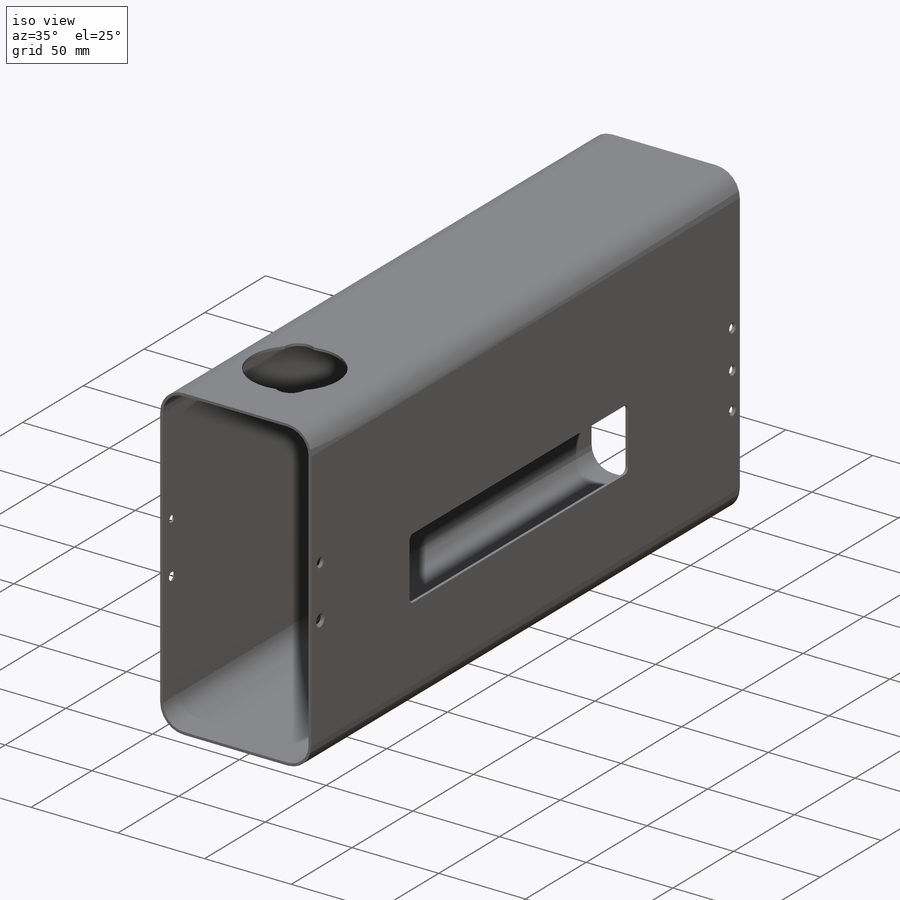
[diagram: iso view]
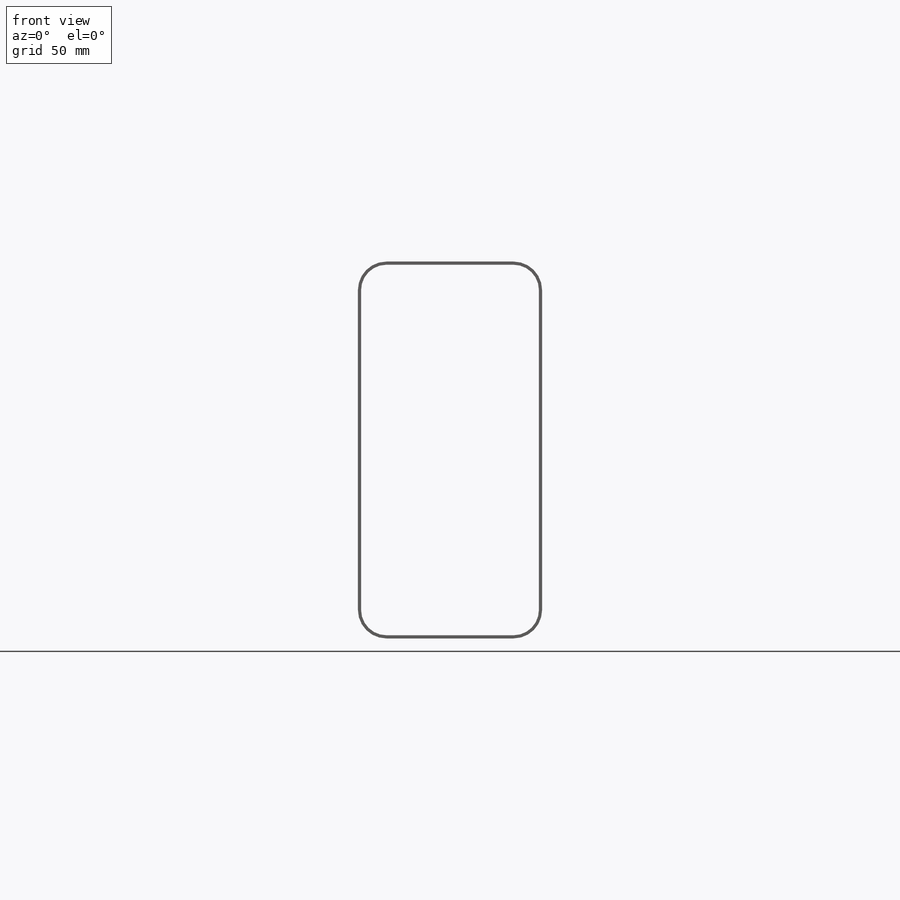
[diagram: front view]
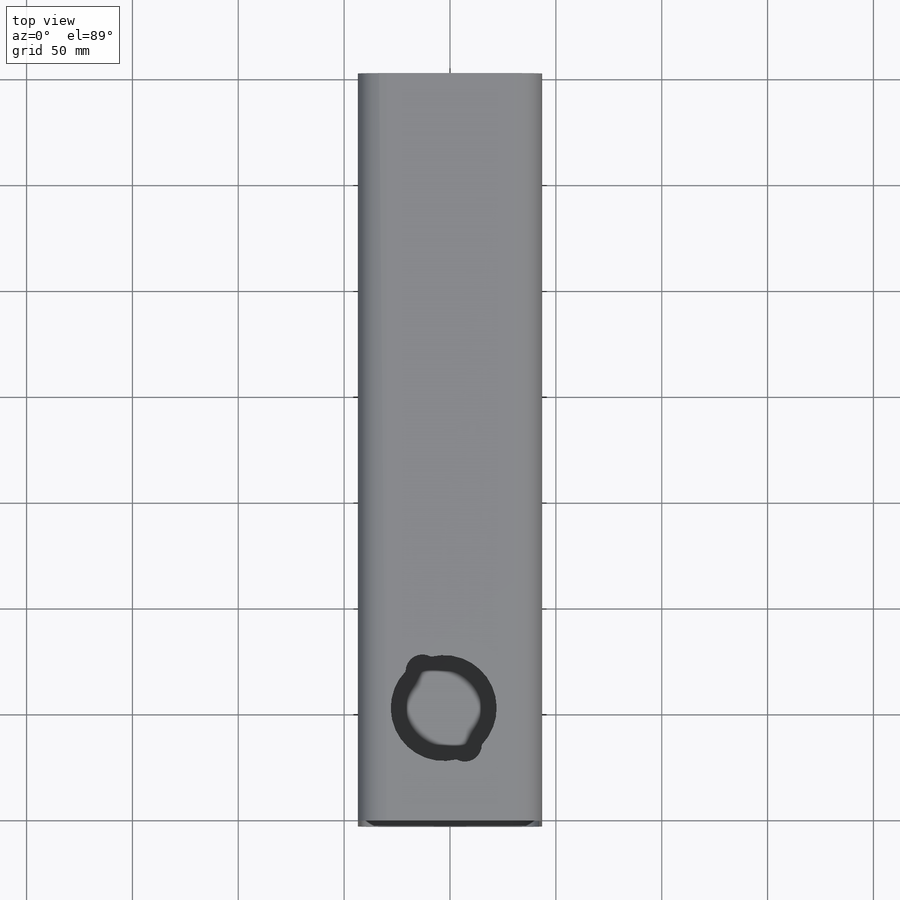
[diagram: top view]
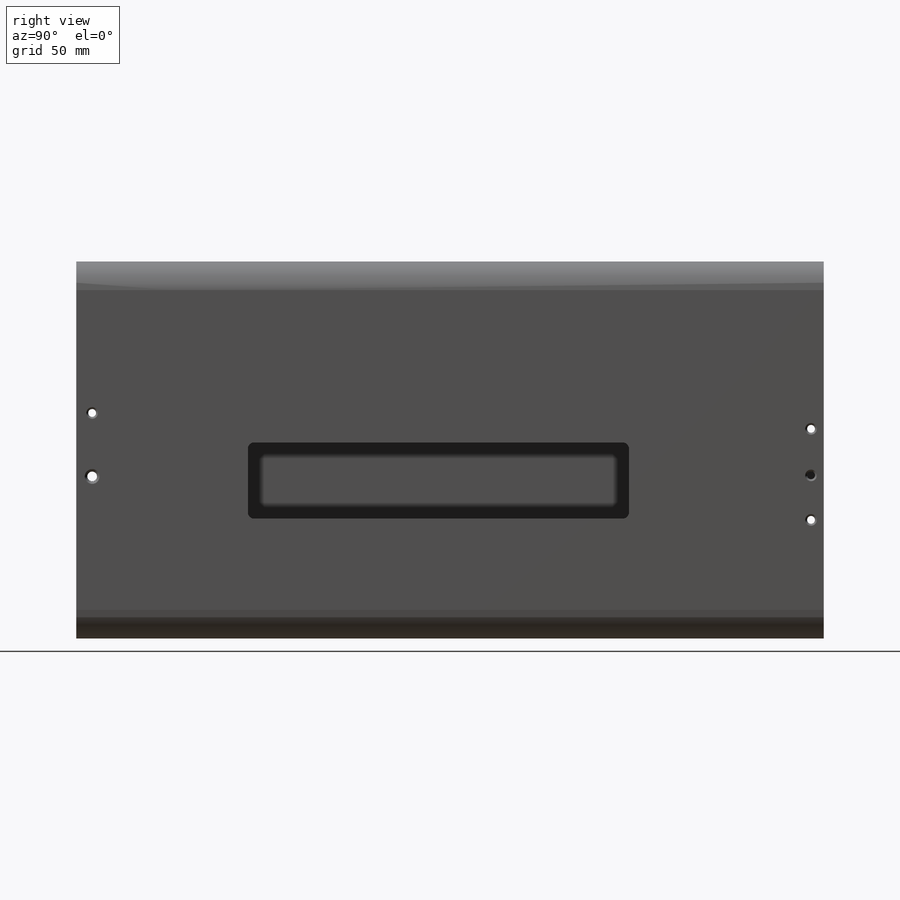
[diagram: right view]
SOLIDWORKS PART (.sldprt)
format: sldprt  version: not decoded by parser v0  size: 444,416 bytes
history: native  units: mm
features: sketch x12, hole x4, plane x3, cut_extrude x3, material x1, extrude x1 (+13 scaffold rows collapsed)
feature tree (37):
  scaffold x13  (default folders/planes/origin — collapsed)
  material  "2024-T4"
  plane  "Спереди"
  plane  "Сверху"
  plane  "Справа"
  sketch  "Эскиз1"  dims[D3=12.0mm D1=86.0mm D2=175.0mm D4=1.5mm]
  extrude  "Бобышка-Вытянуть1"  Depth=353mm
  sketch  "Эскиз2"  dims[D5=3.0mm D1=179.5mm D2=36.0mm D3=84.0mm D4=56.5mm]
  cut_extrude  "Вырез-Вытянуть1"  [1 undecoded]
  sketch  "Эскиз3"  dims[c1.D1=12.0mm c1.D2=12.5mm c1.D3=12.5mm c2.D2=3.5mm c2.D3=34.5mm]
  cut_extrude  "Вырез-Вытянуть2"  [1 undecoded]
  hole  "M3_впотай_1"  [1 undecoded]
  sketch  "Эскиз5"  dims[c1.D1=16.0mm c1.D2=21.0mm c1.D3=8.0mm c1.D4=8.0mm c1.D5=18.0mm c1.D6=71.0mm c1.D7=54.5mm c1.D8=6.0mm c1.D9=7.5mm c2.D3=105.0mm]
  sketch  "Эскиз4"  dims[hole-wizard template sketch: 46 standard entries collapsed; hole parameters kept: c15.Диаметр сквозного отверстия=4.0mm c15.Глубина сквозного отверстия=1.5mm c15.Диаметр передней зенковки=6.0mm c15.D4=~3.666174mm c15.Угол передней зенковки=90.0deg c15.Диаметр задней зенковки=4.1mm c15.D6=~9.919017mm c15.Угол задней зенковки=90.0deg]
  hole  "М3_впотай_2"  [1 undecoded]
  sketch  "Эскиз7"  dims[c1.D1=28.0mm c1.D2=28.0mm c2.D1=21.0mm c2.D2=15.0mm c2.D3=6.0mm c2.D4=10.0mm c2.D5=14.0mm c2.D6=10.0mm c2.D7=5.0mm c2.D8=71.0mm c2.D9=54.5mm]
  sketch  "Эскиз6"  dims[hole-wizard template sketch: 46 standard entries collapsed; hole parameters kept: c15.Диаметр сквозного отверстия=4.0mm c15.Глубина сквозного отверстия=1.5mm c15.Диаметр передней зенковки=6.0mm c15.D4=~3.666174mm c15.Угол передней зенковки=90.0deg c15.Диаметр задней зенковки=4.1mm c15.D6=~9.919017mm c15.Угол задней зенковки=90.0deg]
  sketch  "Эскиз8"  dims[c1.D1=50.0mm c1.D2=50.0mm c1.D3=50.0mm c1.D5=8.0mm c2.D2=53.0mm c2.D3=39.0mm c2.D4=40.0mm c2.D6=~32.779816mm c3.D6=30.0deg]
  cut_extrude  "Вырез-Вытянуть3"  [1 undecoded]
  hole  "Зенковка для винта с потайной головкой M41"  [1 undecoded]
  sketch  "Эскиз10"  dims[D1=9.0mm D2=30.0mm]
  sketch  "Эскиз9"  dims[hole-wizard template sketch: 46 standard entries collapsed; hole parameters kept: c15.Диаметр сквозного отверстия=5.2mm c15.Глубина сквозного отверстия=1.5mm c15.Диаметр передней зенковки=7.5mm c15.D4=~3.666174mm c15.Угол передней зенковки=90.0deg c15.Диаметр задней зенковки=5.3mm c15.D6=~9.919017mm c15.Угол задней зенковки=90.0deg]
  hole  "Зенковка для винта с потайной головкой M43"  [1 undecoded]
  sketch  "Эскиз14"
  sketch  "Эскиз13"  dims[hole-wizard template sketch: 46 standard entries collapsed; hole parameters kept: c15.Диаметр сквозного отверстия=5.2mm c15.Глубина сквозного отверстия=1.5mm c15.Диаметр передней зенковки=7.5mm c15.D4=~3.666174mm c15.Угол передней зенковки=90.0deg c15.Диаметр задней зенковки=5.3mm c15.D6=~9.919017mm c15.Угол задней зенковки=90.0deg]
decode coverage: 12 of 20 modeling features carry decoded parameters
note: ~ marks probable driven/reference dimensions
note: 7 parameter values undecoded
summary: no parameter record found for 7 features
note: suppression state not decoded; provenance and decode notes live in map.json
